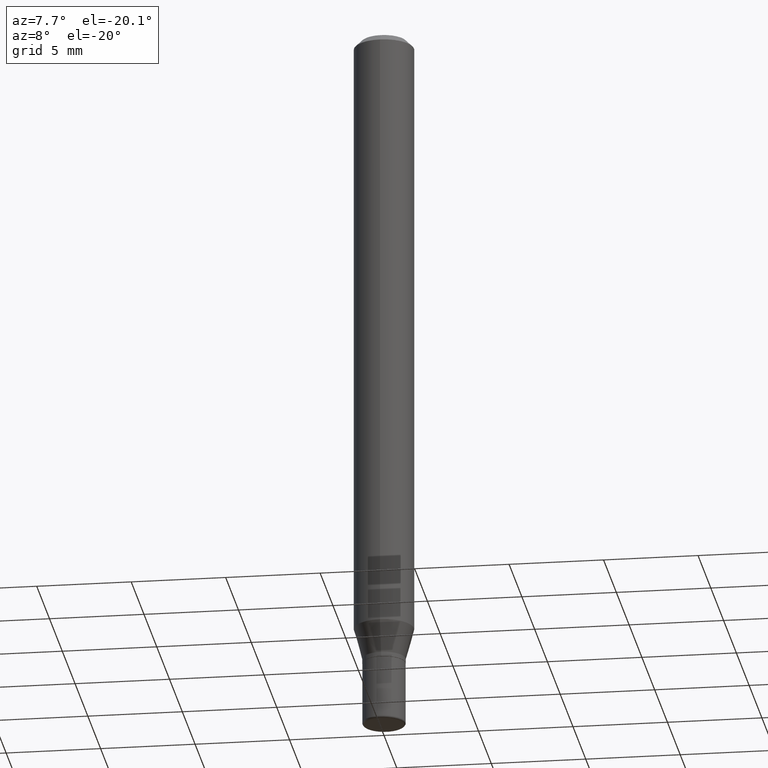
[diagram: clean part render]
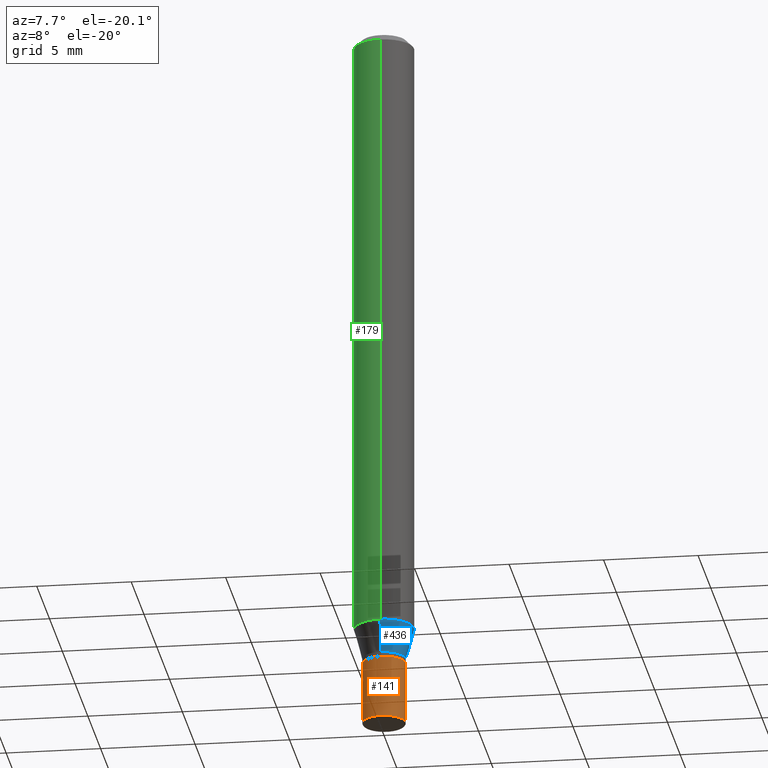
[diagram: same view with three faces highlighted in distinct colors, each labeled with its STEP entity id]
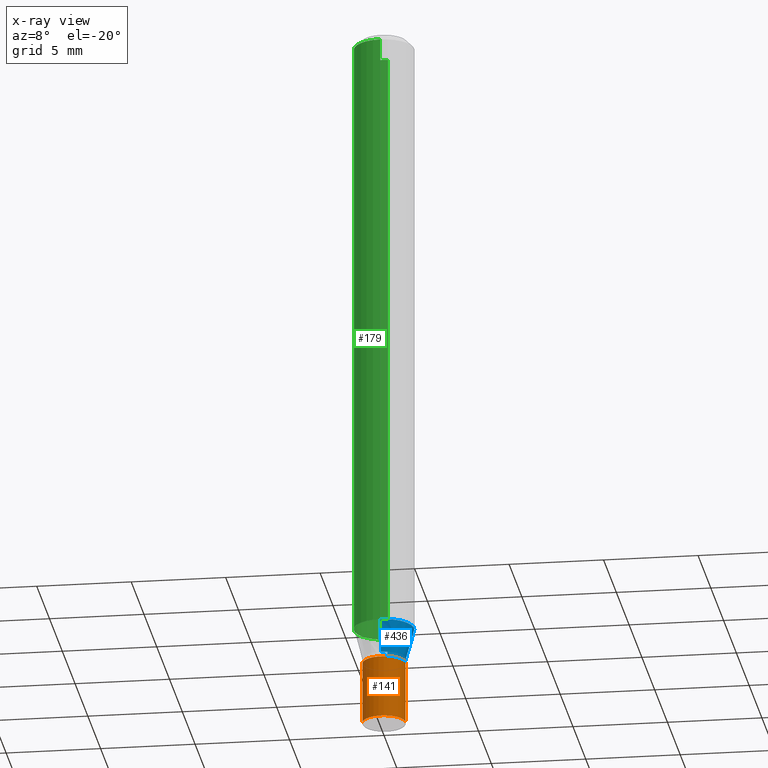
[diagram: x-ray of the same camera — body ghosted, the three highlighted faces saturated]
A machine part, auxiliary view with three faces highlighted in distinct colors.
The next image is the same camera in x-ray (body ghosted, the three faces saturated) — at least one of them is partly hidden behind the body in this view.
Their STEP definitions:

[orange] entity #141 — the highlighted cylindrical surface (edge-blend (fillet) strip) has radius 1.143 mm, axis along (-0, 0, 1).
#2 = FACE_OUTER_BOUND ( 'NONE', #187, .T. ) ;
#42 = CARTESIAN_POINT ( 'NONE',  ( -0.04499999999999999833, -4.673074083453654421E-15, -1.364999999999999991 ) ) ;
#52 = CARTESIAN_POINT ( 'NONE',  ( -0.04499999999999990119, -4.673074083453654421E-15, -1.495000000000000329 ) ) ;
#70 = EDGE_CURVE ( 'NONE', #203, #467, #477, .T. ) ;
#91 = DIRECTION ( 'NONE',  ( -2.445468806185136877E-29, 3.491481338843145188E-15, 1.000000000000000000 ) ) ;
#96 = DIRECTION ( 'NONE',  ( 1.000000000000000000, -6.982962677686266711E-15, 4.876176775795934672E-29 ) ) ;
#120 = CARTESIAN_POINT ( 'NONE',  ( -0.04499999999999994976, 3.197442310920447267E-16, -2.213520790614704757E-30 ) ) ;
#128 = VERTEX_POINT ( 'NONE', #482 ) ;
#131 = VERTEX_POINT ( 'NONE', #441 ) ;
#141 = ADVANCED_FACE ( 'NONE', ( #2 ), #479, .T. ) ;
#162 = VECTOR ( 'NONE', #432, 39.37007874015748143 ) ;
#186 = CARTESIAN_POINT ( 'NONE',  ( 3.338064920442711836E-29, -4.765872027520893280E-15, -1.364999999999999991 ) ) ;
#187 = EDGE_LOOP ( 'NONE', ( #338, #378, #231, #258 ) ) ;
#203 = VERTEX_POINT ( 'NONE', #52 ) ;
#205 = CARTESIAN_POINT ( 'NONE',  ( 0.04499999999999994976, -3.142333204958816371E-16, 2.194279549108168164E-30 ) ) ;
#227 = CARTESIAN_POINT ( 'NONE',  ( 3.655975865246779683E-29, -5.219764601570503930E-15, -1.495000000000000329 ) ) ;
#231 = ORIENTED_EDGE ( 'NONE', *, *, #511, .T. ) ;
#258 = ORIENTED_EDGE ( 'NONE', *, *, #433, .F. ) ;
#267 = DIRECTION ( 'NONE',  ( 1.000000000000000000, -6.982962677686269077E-15, 0.000000000000000000 ) ) ;
#276 = LINE ( 'NONE', #205, #162 ) ;
#292 = CIRCLE ( 'NONE', #363, 0.04499999999999999833 ) ;
#311 = EDGE_CURVE ( 'NONE', #203, #131, #349, .T. ) ;
#338 = ORIENTED_EDGE ( 'NONE', *, *, #70, .F. ) ;
#349 = CIRCLE ( 'NONE', #357, 0.04499999999999990119 ) ;
#357 = AXIS2_PLACEMENT_3D ( 'NONE', #227, #425, #430 ) ;
#363 = AXIS2_PLACEMENT_3D ( 'NONE', #186, #381, #267 ) ;
#378 = ORIENTED_EDGE ( 'NONE', *, *, #311, .T. ) ;
#380 = DIRECTION ( 'NONE',  ( -2.445468806185136597E-29, 3.491481338843145583E-15, 1.000000000000000000 ) ) ;
#381 = DIRECTION ( 'NONE',  ( -2.445468806185136597E-29, 3.491481338843145583E-15, 1.000000000000000000 ) ) ;
#416 = CARTESIAN_POINT ( 'NONE',  ( 0.000000000000000000, 0.000000000000000000, 0.000000000000000000 ) ) ;
#425 = DIRECTION ( 'NONE',  ( -2.445468806185136597E-29, 3.491481338843145583E-15, 1.000000000000000000 ) ) ;
#430 = DIRECTION ( 'NONE',  ( 1.000000000000000000, -6.982962677686261977E-15, 0.000000000000000000 ) ) ;
#432 = DIRECTION ( 'NONE',  ( -2.445468806185136877E-29, 3.491481338843145188E-15, 1.000000000000000000 ) ) ;
#433 = EDGE_CURVE ( 'NONE', #467, #128, #292, .T. ) ;
#441 = CARTESIAN_POINT ( 'NONE',  ( 0.04499999999999990119, -5.533997922066385616E-15, -1.495000000000000329 ) ) ;
#467 = VERTEX_POINT ( 'NONE', #42 ) ;
#473 = VECTOR ( 'NONE', #91, 39.37007874015748143 ) ;
#477 = LINE ( 'NONE', #120, #473 ) ;
#479 = CYLINDRICAL_SURFACE ( 'NONE', #500, 0.04499999999999994976 ) ;
#482 = CARTESIAN_POINT ( 'NONE',  ( 0.04499999999999999833, -5.080105348016775756E-15, -1.364999999999999991 ) ) ;
#500 = AXIS2_PLACEMENT_3D ( 'NONE', #416, #380, #96 ) ;
#511 = EDGE_CURVE ( 'NONE', #131, #128, #276, .T. ) ;

[blue] entity #436 — the highlighted conical surface has half-angle 15 deg.
#16 = EDGE_LOOP ( 'NONE', ( #156, #459, #223, #210 ) ) ;
#19 = CIRCLE ( 'NONE', #145, 0.04499999999999996364 ) ;
#31 = CARTESIAN_POINT ( 'NONE',  ( 3.819167204710860394E-16, 0.04499999999999523131, -1.355000000000000204 ) ) ;
#43 = AXIS2_PLACEMENT_3D ( 'NONE', #351, #146, #460 ) ;
#82 = AXIS2_PLACEMENT_3D ( 'NONE', #229, #457, #107 ) ;
#107 = DIRECTION ( 'NONE',  ( -6.982962677686265922E-15, -1.000000000000000000, 4.370956789862821150E-15 ) ) ;
#145 = AXIS2_PLACEMENT_3D ( 'NONE', #345, #343, #470 ) ;
#146 = DIRECTION ( 'NONE',  ( -2.445401895064720952E-29, 3.491577159375925381E-15, 1.000000000000000000 ) ) ;
#149 = FACE_OUTER_BOUND ( 'NONE', #16, .T. ) ;
#156 = ORIENTED_EDGE ( 'NONE', *, *, #463, .T. ) ;
#209 = CARTESIAN_POINT ( 'NONE',  ( -3.142333204958486036E-16, -0.04500000000000469597, -1.354999999999999538 ) ) ;
#210 = ORIENTED_EDGE ( 'NONE', *, *, #215, .F. ) ;
#215 = EDGE_CURVE ( 'NONE', #289, #429, #336, .T. ) ;
#223 = ORIENTED_EDGE ( 'NONE', *, *, #362, .F. ) ;
#229 = CARTESIAN_POINT ( 'NONE',  ( 3.153808195759828590E-29, -4.503049042200963587E-15, -1.289689110867544342 ) ) ;
#234 = LINE ( 'NONE', #466, #270 ) ;
#239 = DIRECTION ( 'NONE',  ( 1.839019923739593610E-15, 0.2588190451025240146, 0.9659258262890673130 ) ) ;
#270 = VECTOR ( 'NONE', #239, 39.37007874015748854 ) ;
#289 = VERTEX_POINT ( 'NONE', #209 ) ;
#319 = VERTEX_POINT ( 'NONE', #31 ) ;
#325 = CARTESIAN_POINT ( 'NONE',  ( -3.142333204958486036E-16, -0.04500000000000469597, -1.354999999999999538 ) ) ;
#336 = LINE ( 'NONE', #325, #510 ) ;
#343 = DIRECTION ( 'NONE',  ( -2.445401895064720952E-29, 3.491577159375925381E-15, 1.000000000000000000 ) ) ;
#345 = CARTESIAN_POINT ( 'NONE',  ( 3.313519567812696747E-29, -4.731087050954377992E-15, -1.354999999999999982 ) ) ;
#348 = CARTESIAN_POINT ( 'NONE',  ( 4.440892098500942692E-16, 0.06249999999999553135, -1.289689110867544564 ) ) ;
#351 = CARTESIAN_POINT ( 'NONE',  ( 3.313519567812696747E-29, -4.731087050954377992E-15, -1.354999999999999982 ) ) ;
#352 = VERTEX_POINT ( 'NONE', #348 ) ;
#353 = CARTESIAN_POINT ( 'NONE',  ( -4.364351673553598685E-16, -0.06250000000000446865, -1.289689110867544120 ) ) ;
#362 = EDGE_CURVE ( 'NONE', #429, #352, #418, .T. ) ;
#412 = DIRECTION ( 'NONE',  ( -1.807323732225323434E-15, -0.2588190451025172423, 0.9659258262890690894 ) ) ;
#418 = CIRCLE ( 'NONE', #82, 0.06250000000000000000 ) ;
#429 = VERTEX_POINT ( 'NONE', #353 ) ;
#436 = ADVANCED_FACE ( 'NONE', ( #149 ), #492, .T. ) ;
#457 = DIRECTION ( 'NONE',  ( -2.445401895064720952E-29, 3.491577159375925381E-15, 1.000000000000000000 ) ) ;
#459 = ORIENTED_EDGE ( 'NONE', *, *, #505, .T. ) ;
#460 = DIRECTION ( 'NONE',  ( -6.982962677686265133E-15, -1.000000000000000000, 6.070773319253922996E-15 ) ) ;
#463 = EDGE_CURVE ( 'NONE', #289, #319, #19, .T. ) ;
#466 = CARTESIAN_POINT ( 'NONE',  ( 3.197442310920779081E-16, 0.04499999999999523131, -1.355000000000000204 ) ) ;
#470 = DIRECTION ( 'NONE',  ( -6.982962677686265133E-15, -1.000000000000000000, 6.070773319253922996E-15 ) ) ;
#492 = CONICAL_SURFACE ( 'NONE', #43, 0.04499999999999996364, 0.2617993877991493523 ) ;
#505 = EDGE_CURVE ( 'NONE', #319, #352, #234, .T. ) ;
#510 = VECTOR ( 'NONE', #412, 39.37007874015748854 ) ;

[green] entity #179 — the highlighted cylindrical surface (edge-blend (fillet) strip) has radius 1.5875 mm, axis along (-0, 0, 1).
#5 = VECTOR ( 'NONE', #86, 39.37007874015748143 ) ;
#22 = CARTESIAN_POINT ( 'NONE',  ( 3.153808195759828590E-29, -4.503049042200963587E-15, -1.289689110867544342 ) ) ;
#24 = DIRECTION ( 'NONE',  ( -2.445401895064720952E-29, 3.491577159375925381E-15, 1.000000000000000000 ) ) ;
#44 = EDGE_CURVE ( 'NONE', #352, #309, #481, .T. ) ;
#59 = DIRECTION ( 'NONE',  ( -6.982962677686265922E-15, -1.000000000000000000, 3.491577159375925381E-15 ) ) ;
#86 = DIRECTION ( 'NONE',  ( -2.445401895064721232E-29, 3.491577159375925381E-15, 1.000000000000000000 ) ) ;
#90 = FACE_OUTER_BOUND ( 'NONE', #313, .T. ) ;
#93 = AXIS2_PLACEMENT_3D ( 'NONE', #382, #461, #101 ) ;
#101 = DIRECTION ( 'NONE',  ( -6.982962677686265922E-15, -1.000000000000000000, 3.483106191921935554E-15 ) ) ;
#133 = LINE ( 'NONE', #365, #134 ) ;
#134 = VECTOR ( 'NONE', #288, 39.37007874015748143 ) ;
#148 = VERTEX_POINT ( 'NONE', #451 ) ;
#151 = AXIS2_PLACEMENT_3D ( 'NONE', #170, #415, #59 ) ;
#170 = CARTESIAN_POINT ( 'NONE',  ( 0.000000000000000000, 0.000000000000000000, 0.000000000000000000 ) ) ;
#179 = ADVANCED_FACE ( 'NONE', ( #90 ), #330, .T. ) ;
#200 = ORIENTED_EDGE ( 'NONE', *, *, #392, .F. ) ;
#222 = EDGE_CURVE ( 'NONE', #429, #148, #133, .T. ) ;
#228 = AXIS2_PLACEMENT_3D ( 'NONE', #22, #24, #264 ) ;
#245 = CARTESIAN_POINT ( 'NONE',  ( 4.440892098500625669E-16, 0.06250000000000000000, -2.182235724609953363E-16 ) ) ;
#263 = CIRCLE ( 'NONE', #93, 0.06250000000000000000 ) ;
#264 = DIRECTION ( 'NONE',  ( -6.982962677686265922E-15, -1.000000000000000000, 4.370956789862821150E-15 ) ) ;
#288 = DIRECTION ( 'NONE',  ( -2.445401895064721232E-29, 3.491577159375925381E-15, 1.000000000000000000 ) ) ;
#307 = CARTESIAN_POINT ( 'NONE',  ( 4.440892098500942692E-16, 0.06249999999999995143, -0.01499999999999992138 ) ) ;
#309 = VERTEX_POINT ( 'NONE', #307 ) ;
#313 = EDGE_LOOP ( 'NONE', ( #403, #344, #346, #200 ) ) ;
#330 = CYLINDRICAL_SURFACE ( 'NONE', #151, 0.06250000000000000000 ) ;
#344 = ORIENTED_EDGE ( 'NONE', *, *, #413, .T. ) ;
#346 = ORIENTED_EDGE ( 'NONE', *, *, #222, .T. ) ;
#348 = CARTESIAN_POINT ( 'NONE',  ( 4.440892098500942692E-16, 0.06249999999999553135, -1.289689110867544564 ) ) ;
#352 = VERTEX_POINT ( 'NONE', #348 ) ;
#353 = CARTESIAN_POINT ( 'NONE',  ( -4.364351673553598685E-16, -0.06250000000000446865, -1.289689110867544120 ) ) ;
#365 = CARTESIAN_POINT ( 'NONE',  ( -4.364351673553916201E-16, -0.06250000000000000000, 2.182235724609953363E-16 ) ) ;
#382 = CARTESIAN_POINT ( 'NONE',  ( 3.668102842597008945E-31, -5.237365739063784188E-17, -0.01499999999999970281 ) ) ;
#383 = CIRCLE ( 'NONE', #228, 0.06250000000000000000 ) ;
#392 = EDGE_CURVE ( 'NONE', #309, #148, #263, .T. ) ;
#403 = ORIENTED_EDGE ( 'NONE', *, *, #44, .F. ) ;
#413 = EDGE_CURVE ( 'NONE', #352, #429, #383, .T. ) ;
#415 = DIRECTION ( 'NONE',  ( -2.445401895064720952E-29, 3.491577159375925381E-15, 1.000000000000000000 ) ) ;
#429 = VERTEX_POINT ( 'NONE', #353 ) ;
#451 = CARTESIAN_POINT ( 'NONE',  ( -4.364351673553912750E-16, -0.06250000000000005551, -0.01499999999999948597 ) ) ;
#461 = DIRECTION ( 'NONE',  ( -2.445401895064720952E-29, 3.491577159375925381E-15, 1.000000000000000000 ) ) ;
#481 = LINE ( 'NONE', #245, #5 ) ;